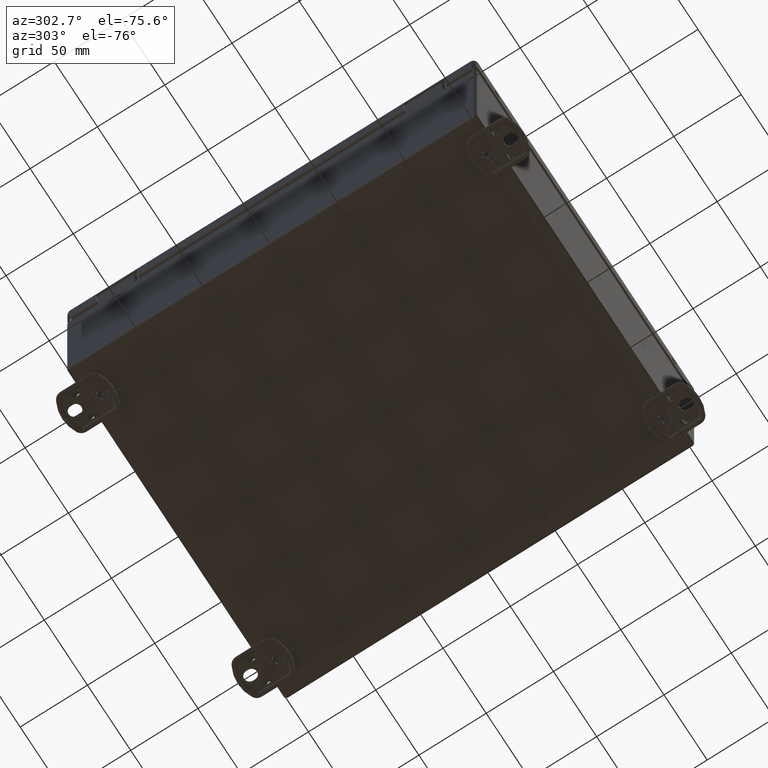
[diagram: clean part render]
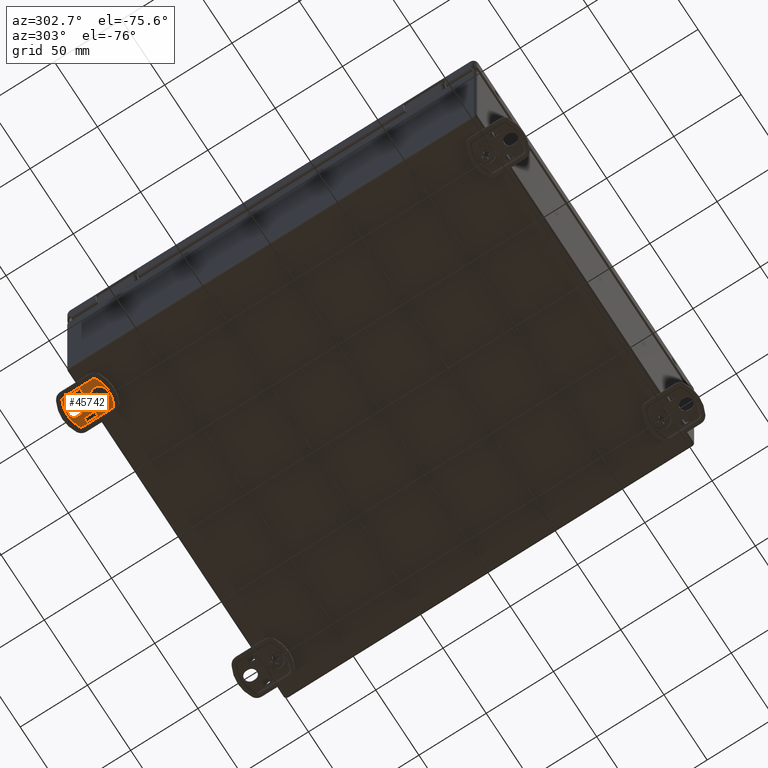
[diagram: same view with one face highlighted and labeled with its STEP entity id]
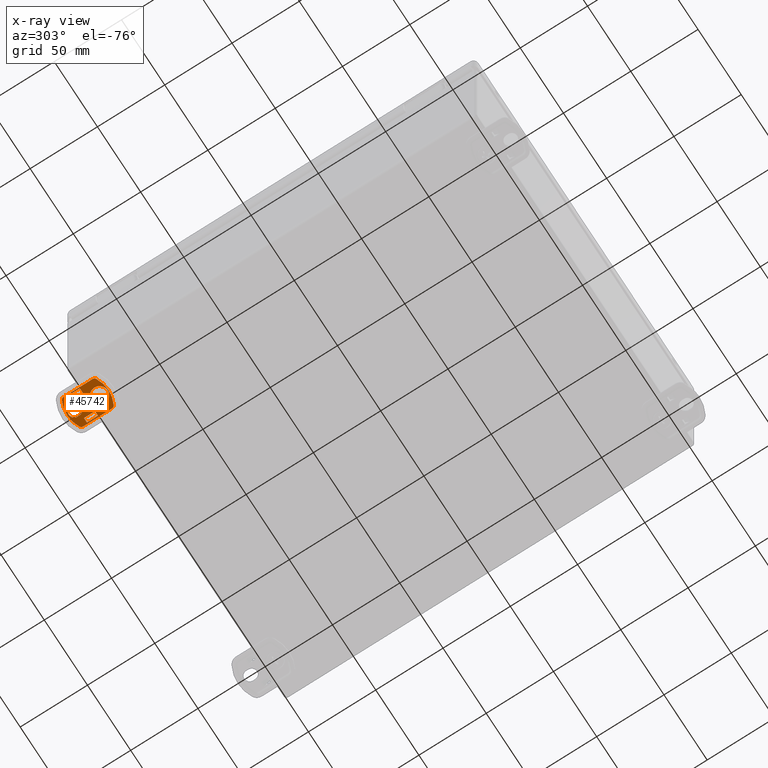
[diagram: x-ray of the same camera — body ghosted, the highlighted face saturated]
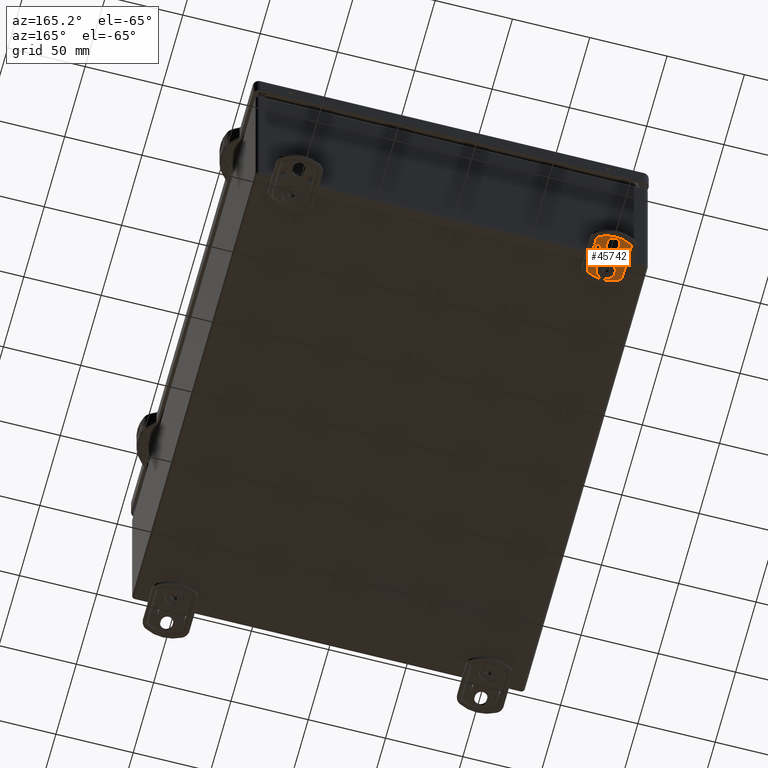
[diagram: same view with one face highlighted and labeled with its STEP entity id]
A machine part, auxiliary view. The second image highlights one B-rep face of the part: STEP entity #45742.
The next image is the same camera in x-ray: the body ghosted, the highlighted face saturated — about 0% of this face is hidden behind the body in this view.
A second angle (auxiliary view) of the same face is appended — the face is thin or edge-on in the first view.
In plain terms, the highlighted planar face has unit normal (0, 0, 1).
Its self-contained STEP definition (entity closure, byte-faithful):
#2065=FACE_BOUND('',#7468,.T.);
#2066=FACE_BOUND('',#7469,.T.);
#2067=FACE_BOUND('',#7470,.T.);
#2068=FACE_BOUND('',#7471,.T.);
#3275=PLANE('',#49489);
#4642=FACE_OUTER_BOUND('',#7467,.T.);
#7467=EDGE_LOOP('',(#33162,#33163,#33164,#33165,#33166,#33167,#33168,#33169));
#7468=EDGE_LOOP('',(#33170,#33171,#33172,#33173,#33174,#33175,#33176,#33177));
#7469=EDGE_LOOP('',(#33178,#33179,#33180,#33181,#33182,#33183,#33184,#33185));
#7470=EDGE_LOOP('',(#33186,#33187,#33188,#33189));
#7471=EDGE_LOOP('',(#33190));
#10670=LINE('',#69350,#14528);
#10683=LINE('',#69391,#14541);
#10688=LINE('',#69405,#14546);
#10705=LINE('',#69462,#14563);
#10708=LINE('',#69468,#14566);
#10711=LINE('',#69474,#14569);
#10716=LINE('',#69484,#14574);
#10721=LINE('',#69494,#14579);
#10727=LINE('',#69506,#14585);
#10730=LINE('',#69512,#14588);
#10734=LINE('',#69520,#14592);
#10737=LINE('',#69526,#14595);
#10740=LINE('',#69537,#14598);
#10741=LINE('',#69545,#14599);
#10742=LINE('',#69547,#14600);
#10743=LINE('',#69548,#14601);
#10744=LINE('',#69549,#14602);
#10745=LINE('',#69550,#14603);
#10746=LINE('',#69555,#14604);
#10747=LINE('',#69558,#14605);
#14528=VECTOR('',#55144,10.);
#14541=VECTOR('',#55179,10.);
#14546=VECTOR('',#55192,10.);
#14563=VECTOR('',#55241,10.);
#14566=VECTOR('',#55248,10.);
#14569=VECTOR('',#55253,10.);
#14574=VECTOR('',#55262,10.);
#14579=VECTOR('',#55273,10.);
#14585=VECTOR('',#55285,10.);
#14588=VECTOR('',#55290,10.);
#14592=VECTOR('',#55296,10.);
#14595=VECTOR('',#55301,10.);
#14598=VECTOR('',#55310,10.);
#14599=VECTOR('',#55317,10.);
#14600=VECTOR('',#55320,10.);
#14601=VECTOR('',#55321,10.);
#14602=VECTOR('',#55322,10.);
#14603=VECTOR('',#55323,10.);
#14604=VECTOR('',#55326,10.);
#14605=VECTOR('',#55329,10.);
#17868=CIRCLE('',#49490,21.2928932188135);
#17869=CIRCLE('',#49491,2.29289321881345);
#17870=CIRCLE('',#49492,2.29289321881345);
#17871=CIRCLE('',#49493,21.2928932188135);
#17872=CIRCLE('',#49494,2.29289321881345);
#17873=CIRCLE('',#49495,2.29289321881345);
#17874=CIRCLE('',#49496,3.9624);
#17875=CIRCLE('',#49497,3.9624);
#17876=CIRCLE('',#49498,6.);
#19968=VERTEX_POINT('',#69347);
#19969=VERTEX_POINT('',#69349);
#19983=VERTEX_POINT('',#69383);
#19986=VERTEX_POINT('',#69389);
#19990=VERTEX_POINT('',#69402);
#19991=VERTEX_POINT('',#69404);
#19998=VERTEX_POINT('',#69420);
#20013=VERTEX_POINT('',#69454);
#20016=VERTEX_POINT('',#69467);
#20018=VERTEX_POINT('',#69473);
#20021=VERTEX_POINT('',#69483);
#20023=VERTEX_POINT('',#69493);
#20026=VERTEX_POINT('',#69505);
#20028=VERTEX_POINT('',#69511);
#20031=VERTEX_POINT('',#69519);
#20033=VERTEX_POINT('',#69525);
#20035=VERTEX_POINT('',#69531);
#20036=VERTEX_POINT('',#69532);
#20037=VERTEX_POINT('',#69534);
#20038=VERTEX_POINT('',#69536);
#20039=VERTEX_POINT('',#69538);
#20040=VERTEX_POINT('',#69540);
#20041=VERTEX_POINT('',#69542);
#20042=VERTEX_POINT('',#69544);
#20043=VERTEX_POINT('',#69551);
#20044=VERTEX_POINT('',#69552);
#20045=VERTEX_POINT('',#69554);
#20046=VERTEX_POINT('',#69556);
#20047=VERTEX_POINT('',#69559);
#24778=EDGE_CURVE('',#19968,#19969,#10670,.T.);
#24799=EDGE_CURVE('',#19986,#19983,#10683,.T.);
#24805=EDGE_CURVE('',#19990,#19991,#10688,.T.);
#24834=EDGE_CURVE('',#20013,#19998,#10705,.T.);
#24837=EDGE_CURVE('',#20013,#20016,#10708,.T.);
#24840=EDGE_CURVE('',#20018,#19998,#10711,.T.);
#24845=EDGE_CURVE('',#20021,#19991,#10716,.T.);
#24850=EDGE_CURVE('',#20023,#19983,#10721,.T.);
#24856=EDGE_CURVE('',#19986,#20026,#10727,.T.);
#24859=EDGE_CURVE('',#19968,#20028,#10730,.T.);
#24863=EDGE_CURVE('',#20031,#19969,#10734,.T.);
#24866=EDGE_CURVE('',#19990,#20033,#10737,.T.);
#24869=EDGE_CURVE('',#20035,#20036,#17868,.T.);
#24870=EDGE_CURVE('',#20037,#20035,#17869,.T.);
#24871=EDGE_CURVE('',#20038,#20037,#10740,.T.);
#24872=EDGE_CURVE('',#20039,#20038,#17870,.T.);
#24873=EDGE_CURVE('',#20040,#20039,#17871,.T.);
#24874=EDGE_CURVE('',#20041,#20040,#17872,.T.);
#24875=EDGE_CURVE('',#20042,#20041,#10741,.T.);
#24876=EDGE_CURVE('',#20036,#20042,#17873,.T.);
#24877=EDGE_CURVE('',#20028,#20023,#10742,.T.);
#24878=EDGE_CURVE('',#20026,#20031,#10743,.T.);
#24879=EDGE_CURVE('',#20033,#20018,#10744,.T.);
#24880=EDGE_CURVE('',#20016,#20021,#10745,.T.);
#24881=EDGE_CURVE('',#20043,#20044,#17874,.T.);
#24882=EDGE_CURVE('',#20044,#20045,#10746,.T.);
#24883=EDGE_CURVE('',#20045,#20046,#17875,.T.);
#24884=EDGE_CURVE('',#20046,#20043,#10747,.T.);
#24885=EDGE_CURVE('',#20047,#20047,#17876,.T.);
#33162=ORIENTED_EDGE('',*,*,#24869,.F.);
#33163=ORIENTED_EDGE('',*,*,#24870,.F.);
#33164=ORIENTED_EDGE('',*,*,#24871,.F.);
#33165=ORIENTED_EDGE('',*,*,#24872,.F.);
#33166=ORIENTED_EDGE('',*,*,#24873,.F.);
#33167=ORIENTED_EDGE('',*,*,#24874,.F.);
#33168=ORIENTED_EDGE('',*,*,#24875,.F.);
#33169=ORIENTED_EDGE('',*,*,#24876,.F.);
#33170=ORIENTED_EDGE('',*,*,#24778,.F.);
#33171=ORIENTED_EDGE('',*,*,#24859,.T.);
#33172=ORIENTED_EDGE('',*,*,#24877,.T.);
#33173=ORIENTED_EDGE('',*,*,#24850,.T.);
#33174=ORIENTED_EDGE('',*,*,#24799,.F.);
#33175=ORIENTED_EDGE('',*,*,#24856,.T.);
#33176=ORIENTED_EDGE('',*,*,#24878,.T.);
#33177=ORIENTED_EDGE('',*,*,#24863,.T.);
#33178=ORIENTED_EDGE('',*,*,#24805,.F.);
#33179=ORIENTED_EDGE('',*,*,#24866,.T.);
#33180=ORIENTED_EDGE('',*,*,#24879,.T.);
#33181=ORIENTED_EDGE('',*,*,#24840,.T.);
#33182=ORIENTED_EDGE('',*,*,#24834,.F.);
#33183=ORIENTED_EDGE('',*,*,#24837,.T.);
#33184=ORIENTED_EDGE('',*,*,#24880,.T.);
#33185=ORIENTED_EDGE('',*,*,#24845,.T.);
#33186=ORIENTED_EDGE('',*,*,#24881,.T.);
#33187=ORIENTED_EDGE('',*,*,#24882,.T.);
#33188=ORIENTED_EDGE('',*,*,#24883,.T.);
#33189=ORIENTED_EDGE('',*,*,#24884,.T.);
#33190=ORIENTED_EDGE('',*,*,#24885,.F.);
#45742=ADVANCED_FACE('',(#4642,#2065,#2066,#2067,#2068),#3275,.F.);
#49489=AXIS2_PLACEMENT_3D('',#69530,#55304,#55305);
#49490=AXIS2_PLACEMENT_3D('',#69533,#55306,#55307);
#49491=AXIS2_PLACEMENT_3D('',#69535,#55308,#55309);
#49492=AXIS2_PLACEMENT_3D('',#69539,#55311,#55312);
#49493=AXIS2_PLACEMENT_3D('',#69541,#55313,#55314);
#49494=AXIS2_PLACEMENT_3D('',#69543,#55315,#55316);
#49495=AXIS2_PLACEMENT_3D('',#69546,#55318,#55319);
#49496=AXIS2_PLACEMENT_3D('',#69553,#55324,#55325);
#49497=AXIS2_PLACEMENT_3D('',#69557,#55327,#55328);
#49498=AXIS2_PLACEMENT_3D('',#69560,#55330,#55331);
#55144=DIRECTION('',(1.,-3.70074341541719E-16,0.));
#55179=DIRECTION('',(-1.,3.70074341541719E-16,0.));
#55192=DIRECTION('',(-1.,-3.70074341541719E-16,0.));
#55241=DIRECTION('',(1.,3.70074341541719E-16,0.));
#55248=DIRECTION('',(-1.,4.37095678985558E-13,0.));
#55253=DIRECTION('',(-1.,-8.74191357973409E-13,0.));
#55262=DIRECTION('',(1.,0.,0.));
#55273=DIRECTION('',(1.,-1.31128703696355E-12,0.));
#55285=DIRECTION('',(1.,2.18547839492015E-12,0.));
#55290=DIRECTION('',(-1.,1.74838271594682E-12,0.));
#55296=DIRECTION('',(-1.,-2.18547839492779E-12,0.));
#55301=DIRECTION('',(1.,0.,0.));
#55304=DIRECTION('center_axis',(0.,0.,1.));
#55305=DIRECTION('ref_axis',(1.,0.,0.));
#55306=DIRECTION('center_axis',(0.,0.,1.));
#55307=DIRECTION('ref_axis',(0.,1.,0.));
#55308=DIRECTION('center_axis',(0.,0.,1.));
#55309=DIRECTION('ref_axis',(0.858395075278952,0.512989176042577,0.));
#55310=DIRECTION('',(2.0687641518511E-16,1.,0.));
#55311=DIRECTION('center_axis',(0.,0.,1.));
#55312=DIRECTION('ref_axis',(0.858395075278952,-0.512989176042578,0.));
#55313=DIRECTION('center_axis',(0.,0.,1.));
#55314=DIRECTION('ref_axis',(-7.2293592301173E-16,-1.,0.));
#55315=DIRECTION('center_axis',(0.,0.,1.));
#55316=DIRECTION('ref_axis',(-0.858395075278952,-0.512989176042577,0.));
#55317=DIRECTION('',(-1.29297759490694E-16,-1.,0.));
#55318=DIRECTION('center_axis',(0.,0.,1.));
#55319=DIRECTION('ref_axis',(-0.858395075278952,0.512989176042577,0.));
#55320=DIRECTION('',(0.,-1.,0.));
#55321=DIRECTION('',(-3.70074341541719E-16,1.,0.));
#55322=DIRECTION('',(0.,1.,0.));
#55323=DIRECTION('',(0.,-1.,0.));
#55324=DIRECTION('center_axis',(0.,0.,1.));
#55325=DIRECTION('ref_axis',(1.,5.60379075623439E-16,0.));
#55326=DIRECTION('',(7.04814007507083E-16,-1.,0.));
#55327=DIRECTION('center_axis',(0.,0.,1.));
#55328=DIRECTION('ref_axis',(-1.,0.,0.));
#55329=DIRECTION('',(-7.04814007507083E-16,1.,0.));
#55330=DIRECTION('center_axis',(0.,0.,-1.));
#55331=DIRECTION('ref_axis',(-1.,0.,0.));
#69347=CARTESIAN_POINT('',(7.00254,7.3777101810391,-2.77555756156289E-16));
#69349=CARTESIAN_POINT('',(10.50254,7.3777101810391,-2.77555756156289E-16));
#69350=CARTESIAN_POINT('',(5.25127,7.3777101810391,0.));
#69383=CARTESIAN_POINT('',(7.00253999999999,-0.799999999999996,-2.77555756156289E-16));
#69389=CARTESIAN_POINT('',(10.50254,-0.799999999999998,0.));
#69391=CARTESIAN_POINT('',(5.25126999999999,-0.799999999999997,0.));
#69402=CARTESIAN_POINT('',(-7.00253999999999,-0.799999999999996,0.));
#69404=CARTESIAN_POINT('',(-10.50254,-0.799999999999998,-2.77555756156289E-16));
#69405=CARTESIAN_POINT('',(-5.25127,-0.799999999999997,0.));
#69420=CARTESIAN_POINT('',(-7.00254,7.3777101810391,-2.77555756156289E-16));
#69454=CARTESIAN_POINT('',(-10.50254,7.3777101810391,-2.77555756156289E-16));
#69462=CARTESIAN_POINT('',(-5.25127,7.3777101810391,0.));
#69467=CARTESIAN_POINT('',(-10.50508,7.3777101810391,-2.77555756156289E-16));
#69468=CARTESIAN_POINT('',(-5.25126999999839,7.3777101810368,0.));
#69473=CARTESIAN_POINT('',(-7.,7.3777101810391,-2.77555756156289E-16));
#69474=CARTESIAN_POINT('',(-3.50000000000323,7.37771018104216,0.));
#69483=CARTESIAN_POINT('',(-10.50508,-0.799999999999998,-2.77555756156289E-16));
#69484=CARTESIAN_POINT('',(-5.25254,-0.799999999999998,0.));
#69493=CARTESIAN_POINT('',(7.,-0.799999999999993,-2.77555756156289E-16));
#69494=CARTESIAN_POINT('',(3.49999999999947,-0.799999999995403,0.));
#69505=CARTESIAN_POINT('',(10.50508,-0.799999999999993,0.));
#69506=CARTESIAN_POINT('',(5.25127000000087,-0.800000000011475,0.));
#69511=CARTESIAN_POINT('',(7.,7.3777101810391,-2.77555756156289E-16));
#69512=CARTESIAN_POINT('',(3.50127000000644,7.37771018104522,0.));
#69519=CARTESIAN_POINT('',(10.50508,7.3777101810391,-2.77555756156289E-16));
#69520=CARTESIAN_POINT('',(5.25253999999193,7.37771018102762,0.));
#69525=CARTESIAN_POINT('',(-7.,-0.799999999999996,0.));
#69526=CARTESIAN_POINT('',(-3.50127,-0.799999999999996,0.));
#69530=CARTESIAN_POINT('Origin',(-5.55111512312578E-15,-5.55111512312578E-16,
0.));
#69531=CARTESIAN_POINT('',(10.0861073141748,12.7525395846734,0.));
#69532=CARTESIAN_POINT('',(-10.0861073141748,12.7525395846734,0.));
#69533=CARTESIAN_POINT('Origin',(-8.88178419700125E-15,-6.,0.));
#69534=CARTESIAN_POINT('',(11.2928932188134,10.7332005306815,0.));
#69535=CARTESIAN_POINT('Origin',(8.99999999999999,10.7332005306815,0.));
#69536=CARTESIAN_POINT('',(11.2928932188134,-10.7332005306815,0.));
#69537=CARTESIAN_POINT('',(11.2928932188134,-5.36660026534076,0.));
#69538=CARTESIAN_POINT('',(10.0861073141748,-12.7525395846734,0.));
#69539=CARTESIAN_POINT('Origin',(8.99999999999999,-10.7332005306815,0.));
#69540=CARTESIAN_POINT('',(-10.0861073141748,-12.7525395846734,0.));
#69541=CARTESIAN_POINT('Origin',(-2.22044604925031E-15,6.,0.));
#69542=CARTESIAN_POINT('',(-11.2928932188135,-10.7332005306815,0.));
#69543=CARTESIAN_POINT('Origin',(-9.00000000000001,-10.7332005306815,0.));
#69544=CARTESIAN_POINT('',(-11.2928932188135,10.7332005306815,0.));
#69545=CARTESIAN_POINT('',(-11.2928932188135,5.36660026534076,0.));
#69546=CARTESIAN_POINT('Origin',(-9.,10.7332005306815,0.));
#69547=CARTESIAN_POINT('',(7.,3.68885509051955,0.));
#69548=CARTESIAN_POINT('',(10.50508,4.99694359964072E-15,0.));
#69549=CARTESIAN_POINT('',(-7.,1.38777878078145E-15,0.));
#69550=CARTESIAN_POINT('',(-10.50508,3.68885509051955,0.));
#69551=CARTESIAN_POINT('',(3.9624,10.3126,0.));
#69552=CARTESIAN_POINT('',(-3.9624,10.3126,0.));
#69553=CARTESIAN_POINT('Origin',(-4.60629803614512E-16,10.3126,0.));
#69554=CARTESIAN_POINT('',(-3.9624,8.7374,0.));
#69555=CARTESIAN_POINT('',(-3.9624,4.3687,0.));
#69556=CARTESIAN_POINT('',(3.9624,8.7374,0.));
#69557=CARTESIAN_POINT('Origin',(0.,8.7374,0.));
#69558=CARTESIAN_POINT('',(3.9624,5.1563,0.));
#69559=CARTESIAN_POINT('',(6.,-8.7376,0.));
#69560=CARTESIAN_POINT('Origin',(0.,-8.7376,0.));